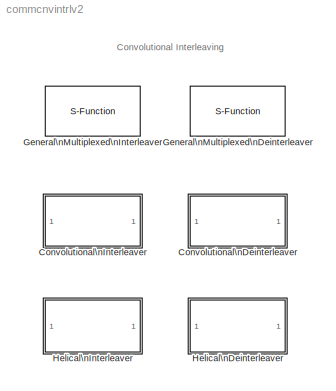
MODEL commcnvintrlv2
KIND library
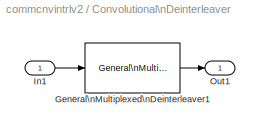
BLOCK [SubSystem] Convolutional\nDeinterleaver
  MaskCallbackString = ||
  MaskDescription = A convolutional deinterleaver consists of N shift registers.  The ith register has delay (N-i)*B where B is a specified register length step.  With each new input symbol, a commutator switches to a new register and the new symbol is shifted in while the oldest symbol in that register is shifted out.  When the commutator reaches the Nth register, upon the next new input, it returns to the first reg...<+6ch>
  MaskDisplay = disp('Convolutional\\nDeinterleaver'); \n
  MaskEnableString = on,on,on
  MaskHelp = helpview(commbhelp)
  MaskIconFrame = on
  MaskIconOpaque = on
  MaskIconRotate = none
  MaskIconUnits = autoscale
  MaskPromptString = Rows of shift registers:|Register length step:|Initial conditions:
  MaskSelfModifiable = on
  MaskStyleString = edit,edit,edit
  MaskToolTipString = on,on,on
  MaskTunableValueString = on,on,on
  MaskType = Convolutional Deinterleaver
  MaskValueString = 6|2|0
  MaskVarAliasString = ,,
  MaskVariables = N=@1;B=@2;ic=@3;
  MaskVisibilityString = on,on,on
  Ports = [1, 1]
  TreatAsAtomicUnit = off
BLOCK [Reference] Convolutional\nDeinterleaver/General\nMultiplexed\nDeinterleaver1  REF=commcnvintrlv2/General\nMultiplexed\nDeinterleaver
  Ports = [1, 1]
  SourceBlock = commcnvintrlv2/General\nMultiplexed\nDeinterleaver
  SourceType = General Multiplexed Deinterleaver
  delay = [0:B:B*(N-1)]'
  ic = ic
BLOCK [Inport] Convolutional\nDeinterleaver/In1
BLOCK [Outport] Convolutional\nDeinterleaver/Out1
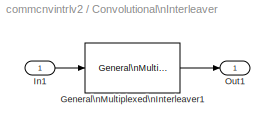
BLOCK [SubSystem] Convolutional\nInterleaver
  MaskCallbackString = ||
  MaskDescription = A convolutional interleaver consists of N shift registers.  The ith register has delay (i-1)*B where B is a specified register length step.  With each new input symbol, a commutator switches to a new register and the new symbol is shifted in while the oldest symbol in that register is shifted out.  When the commutator reaches the Nth register, upon the next new input, it returns to the first regis...<+4ch>
  MaskDisplay = disp('Convolutional\\nInterleaver'); \n
  MaskEnableString = on,on,on
  MaskHelp = helpview(commbhelp)
  MaskIconFrame = on
  MaskIconOpaque = on
  MaskIconRotate = none
  MaskIconUnits = autoscale
  MaskPromptString = Rows of shift registers:|Register length step:|Initial conditions:
  MaskSelfModifiable = on
  MaskStyleString = edit,edit,edit
  MaskToolTipString = on,on,on
  MaskTunableValueString = on,on,on
  MaskType = Convolutional Interleaver
  MaskValueString = 6|2|0
  MaskVarAliasString = ,,
  MaskVariables = N=@1;B=@2;ic=@3;
  MaskVisibilityString = on,on,on
  Ports = [1, 1]
  TreatAsAtomicUnit = off
BLOCK [Reference] Convolutional\nInterleaver/General\nMultiplexed\nInterleaver1  REF=commcnvintrlv2/General\nMultiplexed\nInterleaver
  Ports = [1, 1]
  SourceBlock = commcnvintrlv2/General\nMultiplexed\nInterleaver
  SourceType = General Multiplexed Interleaver
  delay = [0:B:B*(N-1)]'
  ic = ic
BLOCK [Inport] Convolutional\nInterleaver/In1
BLOCK [Outport] Convolutional\nInterleaver/Out1
BLOCK [S-Function] General\nMultiplexed\nDeinterleaver
  FunctionName = scomgenmuxint
  MaskCallbackString = |
  MaskDescription = A general multiplexed deinterleaver consists of N registers.  With each new input symbol, a commutator switches to a new register and the new symbol is shifted in while the oldest symbol in that register is shifted out.  When the commutator reaches the Nth register, upon the next new input, it returns to the first register.\n\nThe multiplexed deinterleaver associated with a general multiplexed int...<+206ch>
  MaskDisplay = disp('General\\nMultiplexed\\nDeinterleaver'); \n
  MaskEnableString = on,on
  MaskHelp = helpview(commbhelp)
  MaskIconFrame = on
  MaskIconOpaque = on
  MaskIconRotate = none
  MaskIconUnits = autoscale
  MaskInitialization = delayinverse=max(delay)-delay;
  MaskPromptString = Interleaver delay (samples):|Initial conditions:
  MaskSelfModifiable = on
  MaskStyleString = edit,edit
  MaskToolTipString = on,on
  MaskTunableValueString = on,on
  MaskType = General Multiplexed Deinterleaver
  MaskValueString = [2 0 1 3 10]|0
  MaskVarAliasString = ,
  MaskVariables = delay=@1;ic=@2;
  MaskVisibilityString = on,on
  Parameters = delayinverse, real(ic), imag(ic)
  Ports = [1, 1]
BLOCK [S-Function] General\nMultiplexed\nInterleaver
  FunctionName = scomgenmuxint
  MaskCallbackString = |
  MaskDescription = A general multiplexed interleaver consists of N registers, each with a specified delay.  With each new input symbol, a commutator switches to a new register and the new symbol is shifted in while the oldest symbol in that register is shifted out.  When the commutator reaches the Nth register, upon the next new input, it returns to the first register.
  MaskDisplay = disp('General\\nMultiplexed\\nInterleaver'); \n
  MaskEnableString = on,on
  MaskHelp = helpview(commbhelp)
  MaskIconFrame = on
  MaskIconOpaque = on
  MaskIconRotate = none
  MaskIconUnits = autoscale
  MaskPromptString = Interleaver delay (samples):|Initial conditions:
  MaskSelfModifiable = on
  MaskStyleString = edit,edit
  MaskToolTipString = on,on
  MaskTunableValueString = on,on
  MaskType = General Multiplexed Interleaver
  MaskValueString = [2 0 1 3 10]|0
  MaskVarAliasString = ,
  MaskVariables = delay=@1;ic=@2;
  MaskVisibilityString = on,on
  Parameters = delay, real(ic), imag(ic)
  Ports = [1, 1]
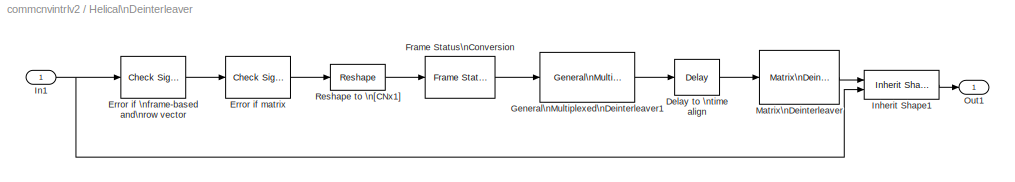
BLOCK [SubSystem] Helical\nDeinterleaver
  MaskCallbackString = |||
  MaskDescription = Restore the ordering of symbols input to a matching helical interleaver.  The operation of a helical deinterleaver is defined by a helical array with C columns.  The input to the helical deinterleaver must have width C*N.  Received symbols are entered row-by-row into the helical array.  The block processes the symbols in the helical array in groups of size N and assigns an index k to each group, b...<+325ch>
  MaskDisplay = disp('Helical\\nDeinterleaver'); \n
  MaskEnableString = on,on,on,on
  MaskHelp = helpview(commbhelp)
  MaskIconFrame = on
  MaskIconOpaque = on
  MaskIconRotate = none
  MaskIconUnits = autoscale
  MaskInitialization = if s<0\n    error('The helical array step size must be a nonnegative integer.');\nend\n\nif length(ic)~=1\n   error('The initial condition must be a scalar.');\nend\n\nif(C<=0)\n   error('The number of columns in helical array must be a nonnegative integer.');\nend\n\nif(N<=0)\n   error('The group size must be a nonnegative integer.');\nend
  MaskPromptString = Number of columns in helical array:|Group size:|Helical array step size:|Initial condition:
  MaskSelfModifiable = on
  MaskStyleString = edit,edit,edit,edit
  MaskToolTipString = on,on,on,on
  MaskTunableValueString = on,on,on,on
  MaskType = Helical Deinterleaver
  MaskValueString = 6|4|1|0
  MaskVarAliasString = ,,,
  MaskVariables = C=@1;N=@2;s=@3;ic=@4;
  MaskVisibilityString = on,on,on,on
  Ports = [1, 1]
  TreatAsAtomicUnit = off
BLOCK [Reference] Helical\nDeinterleaver/Delay to \ntime align  REF=dspsigops/Delay
  Ports = [1, 1]
  SourceBlock = dspsigops/Delay
  SourceType = Delay
  delay = mod(C*N-s*C*(C-1),C*N)
  dif_ic_for_ch = off
  dif_ic_for_dly = off
  dly_unit = Samples
  ic = 0
  ic_detail = off
  reset_popup = None
BLOCK [Reference] Helical\nDeinterleaver/Error if \nframe-based and\nrow vector  REF=dspsigattribs/Check Signal\nAttributes
  Complexity = Ignore
  DatatypeCheckMethod = Ignore
  DatatypeGeneral = Boolean
  Dimensions = Row vector (2-D)
  DimsCheckMethod = Is...
  DtypeFixedSpecific = Any fixed-point
  DtypeFloatSpecific = Any floating-point
  DtypeIntSpecific = Any integer
  Frame = Frame-based
  Ports = [1, 1]
  SampleMode = Ignore
  SigAttribCheckMethod = Matches attributes exactly
  SourceBlock = dspsigattribs/Check Signal\nAttributes
  SourceType = Check Signal Attributes
BLOCK [Reference] Helical\nDeinterleaver/Error if matrix  REF=dspsigattribs/Check Signal\nAttributes
  Complexity = Ignore
  DatatypeCheckMethod = Ignore
  DatatypeGeneral = Boolean
  Dimensions = Full matrix (2-D)
  DimsCheckMethod = Is...
  DtypeFixedSpecific = Any fixed-point
  DtypeFloatSpecific = Any floating-point
  DtypeIntSpecific = Any integer
  Frame = Ignore
  Ports = [1, 1]
  SampleMode = Ignore
  SigAttribCheckMethod = Matches attributes exactly
  SourceBlock = dspsigattribs/Check Signal\nAttributes
  SourceType = Check Signal Attributes
BLOCK [Reference] Helical\nDeinterleaver/Frame Status\nConversion  REF=dspsigattribs/Frame Status\nConversion
  Ports = [1, 1]
  SourceBlock = dspsigattribs/Frame Status\nConversion
  SourceType = Frame Status Conversion
  growRefPort = off
  outframe = Frame-based
BLOCK [Reference] Helical\nDeinterleaver/General\nMultiplexed\nDeinterleaver1  REF=commcnvintrlv2/General\nMultiplexed\nDeinterleaver
  Ports = [1, 1]
  SourceBlock = commcnvintrlv2/General\nMultiplexed\nDeinterleaver
  SourceType = General Multiplexed Deinterleaver
  delay = [0:s:(C-1)*s]'
  ic = ic
BLOCK [Inport] Helical\nDeinterleaver/In1
BLOCK [Reference] Helical\nDeinterleaver/Inherit Shape1  REF=commblksprivate/Inherit Shape
  Ports = [2, 1]
  SourceBlock = commblksprivate/Inherit Shape
  SourceType = Inherit Shape
BLOCK [Reference] Helical\nDeinterleaver/Matrix\nDeinterleaver  REF=commblkintrlv2/Matrix\nDeinterleaver
  Ncols = N
  Nrows = C
  Ports = [1, 1]
  SourceBlock = commblkintrlv2/Matrix\nDeinterleaver
  SourceType = Matrix Deinterleaver
BLOCK [Outport] Helical\nDeinterleaver/Out1
BLOCK [Reference] Helical\nDeinterleaver/Reshape to \n[CNx1]  REF=simulink/Math\nOperations/Reshape
  OutputDimensionality = Customize
  OutputDimensions = [C*N,1]
  Ports = [1, 1]
  SourceBlock = simulink/Math\nOperations/Reshape
  SourceType = Reshape
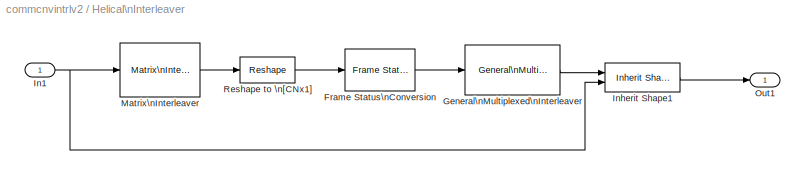
BLOCK [SubSystem] Helical\nInterleaver
  MaskCallbackString = |||
  MaskDescription = Permute input vector using a helical array with C columns.  The input to the helical interleaver must have width C*N.  The block processes the input in groups of size N and assigns an index to each group, beginning with k=1 at the start of the simulation.  The kth group of N symbols is entered sequentially down column k mod C of the helical array and beginning in row 1+(k-1)*s, where s is the heli...<+205ch>
  MaskDisplay = disp('Helical\\nInterleaver'); \n
  MaskEnableString = on,on,on,on
  MaskHelp = helpview(commbhelp)
  MaskIconFrame = on
  MaskIconOpaque = on
  MaskIconRotate = none
  MaskIconUnits = autoscale
  MaskInitialization = if s<0\n    error('The helical array step size must be a nonnegative integer.');\nend\n\nif length(ic)~=1\nerror('The initial condition must be a scalar.');\nend\n\nif(C<=0)\n   error('The number of columns in helical array must be a nonnegative integer.');\nend\n\nif(N<=0)\n   error('The group size must be a nonnegative integer.');\nend
  MaskPromptString = Number of columns in helical array:|Group size:|Helical array step size:|Initial condition:
  MaskSelfModifiable = on
  MaskStyleString = edit,edit,edit,edit
  MaskToolTipString = on,on,on,on
  MaskTunableValueString = on,on,on,on
  MaskType = Helical Interleaver
  MaskValueString = 6|4|1|0
  MaskVarAliasString = ,,,
  MaskVariables = C=@1;N=@2;s=@3;ic=@4;
  MaskVisibilityString = on,on,on,on
  Ports = [1, 1]
  TreatAsAtomicUnit = off
BLOCK [Reference] Helical\nInterleaver/Frame Status\nConversion  REF=dspsigattribs/Frame Status\nConversion
  Ports = [1, 1]
  SourceBlock = dspsigattribs/Frame Status\nConversion
  SourceType = Frame Status Conversion
  growRefPort = off
  outframe = Frame-based
BLOCK [Reference] Helical\nInterleaver/General\nMultiplexed\nInterleaver  REF=commcnvintrlv2/General\nMultiplexed\nInterleaver
  Ports = [1, 1]
  SourceBlock = commcnvintrlv2/General\nMultiplexed\nInterleaver
  SourceType = General Multiplexed Interleaver
  delay = [0:s:(C-1)*s]'
  ic = ic
BLOCK [Inport] Helical\nInterleaver/In1
BLOCK [Reference] Helical\nInterleaver/Inherit Shape1  REF=commblksprivate/Inherit Shape
  Ports = [2, 1]
  SourceBlock = commblksprivate/Inherit Shape
  SourceType = Inherit Shape
BLOCK [Reference] Helical\nInterleaver/Matrix\nInterleaver  REF=commblkintrlv2/Matrix\nInterleaver
  Ncols = N
  Nrows = C
  Ports = [1, 1]
  SourceBlock = commblkintrlv2/Matrix\nInterleaver
  SourceType = Matrix Interleaver
BLOCK [Outport] Helical\nInterleaver/Out1
BLOCK [Reference] Helical\nInterleaver/Reshape to \n[CNx1]  REF=simulink/Math\nOperations/Reshape
  OutputDimensionality = Customize
  OutputDimensions = [C*N,1]
  Ports = [1, 1]
  SourceBlock = simulink/Math\nOperations/Reshape
  SourceType = Reshape
ANNOTATION (root): Convolutional Interleaving
LINE Convolutional\nDeinterleaver/General\nMultiplexed\nDeinterleaver1:1 -> Convolutional\nDeinterleaver/Out1:1
LINE Convolutional\nDeinterleaver/In1:1 -> Convolutional\nDeinterleaver/General\nMultiplexed\nDeinterleaver1:1
LINE Convolutional\nInterleaver/General\nMultiplexed\nInterleaver1:1 -> Convolutional\nInterleaver/Out1:1
LINE Convolutional\nInterleaver/In1:1 -> Convolutional\nInterleaver/General\nMultiplexed\nInterleaver1:1
LINE Helical\nDeinterleaver/Delay to \ntime align:1 -> Helical\nDeinterleaver/Matrix\nDeinterleaver:1
LINE Helical\nDeinterleaver/Error if \nframe-based and\nrow vector:1 -> Helical\nDeinterleaver/Error if matrix:1
LINE Helical\nDeinterleaver/Error if matrix:1 -> Helical\nDeinterleaver/Reshape to \n[CNx1]:1
LINE Helical\nDeinterleaver/Frame Status\nConversion:1 -> Helical\nDeinterleaver/General\nMultiplexed\nDeinterleaver1:1
LINE Helical\nDeinterleaver/General\nMultiplexed\nDeinterleaver1:1 -> Helical\nDeinterleaver/Delay to \ntime align:1
NET Helical\nDeinterleaver/In1:1 -> Helical\nDeinterleaver/Error if \nframe-based and\nrow vector:1, Helical\nDeinterleaver/Inherit Shape1:2
LINE Helical\nDeinterleaver/Inherit Shape1:1 -> Helical\nDeinterleaver/Out1:1
LINE Helical\nDeinterleaver/Matrix\nDeinterleaver:1 -> Helical\nDeinterleaver/Inherit Shape1:1
LINE Helical\nDeinterleaver/Reshape to \n[CNx1]:1 -> Helical\nDeinterleaver/Frame Status\nConversion:1
LINE Helical\nInterleaver/Frame Status\nConversion:1 -> Helical\nInterleaver/General\nMultiplexed\nInterleaver:1
LINE Helical\nInterleaver/General\nMultiplexed\nInterleaver:1 -> Helical\nInterleaver/Inherit Shape1:1
NET Helical\nInterleaver/In1:1 -> Helical\nInterleaver/Inherit Shape1:2, Helical\nInterleaver/Matrix\nInterleaver:1
LINE Helical\nInterleaver/Inherit Shape1:1 -> Helical\nInterleaver/Out1:1
LINE Helical\nInterleaver/Matrix\nInterleaver:1 -> Helical\nInterleaver/Reshape to \n[CNx1]:1
LINE Helical\nInterleaver/Reshape to \n[CNx1]:1 -> Helical\nInterleaver/Frame Status\nConversion:1
note: NET lines group one-source signal fan-out (src -> all destinations, sorted); 1:1 wires keep LINE
